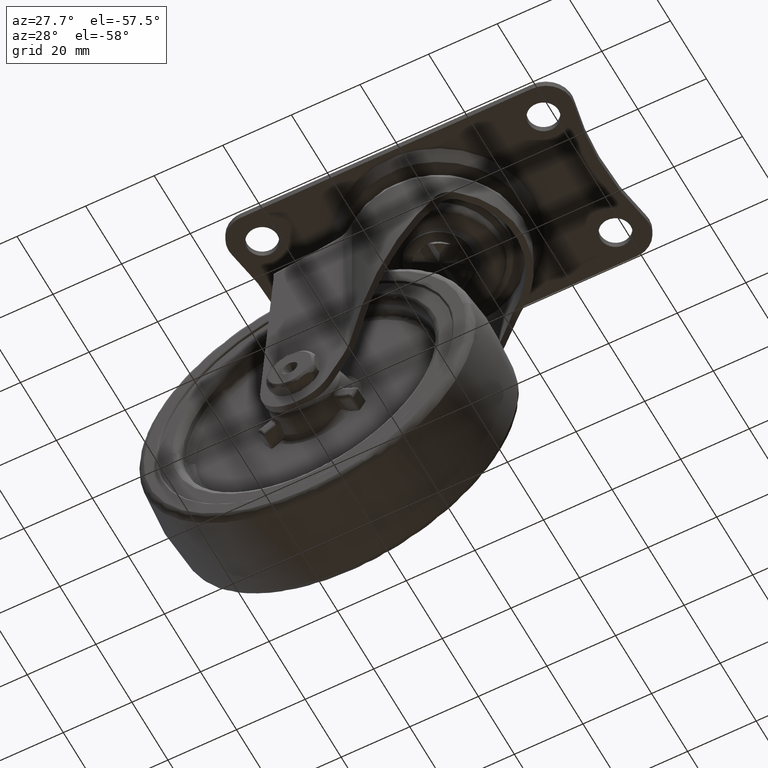
[diagram: clean part render]
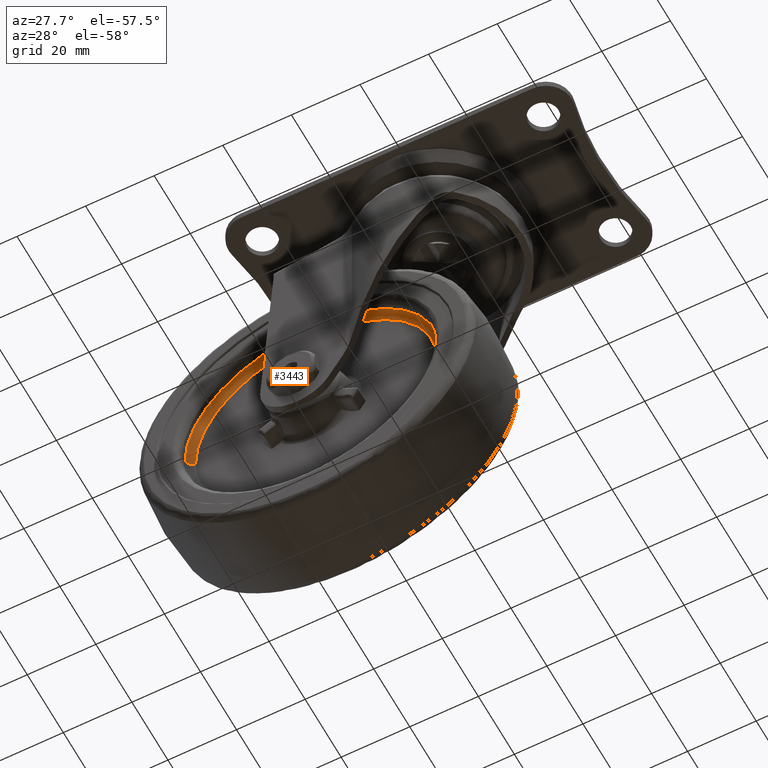
[diagram: same view with one face highlighted and labeled with its STEP entity id]
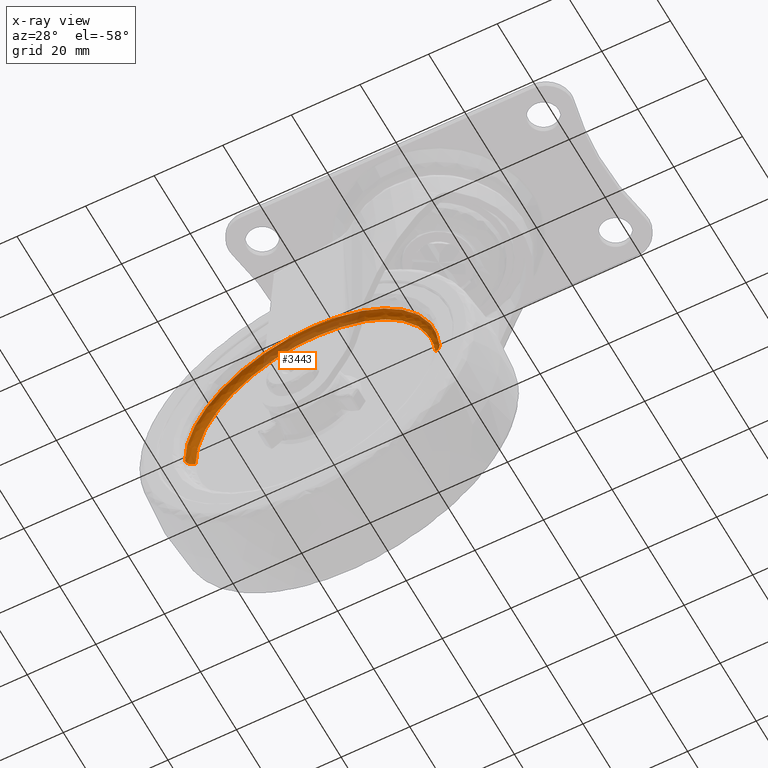
[diagram: x-ray of the same camera — body ghosted, the highlighted face saturated]
A machine part, auxiliary view. The second image highlights one B-rep face of the part: STEP entity #3443.
The next image is the same camera in x-ray: the body ghosted, the highlighted face saturated — about 27% of this face is hidden behind the body in this view.
In plain terms, the highlighted face is a freeform B-spline surface patch.
Its self-contained STEP definition (entity closure, byte-faithful):
#875=CARTESIAN_POINT('',(-68.996475683150621,-9.499999999574790,-70.464935898434035));
#876=VERTEX_POINT('',#875);
#890=CARTESIAN_POINT('',(-32.0,-9.500000000000000,-33.000603000000012));
#891=VERTEX_POINT('',#890);
#892=CARTESIAN_POINT('',(-68.996475683150621,-9.499999999574790,-70.464935898434035));
#893=CARTESIAN_POINT('',(-68.999397000000002,-9.500000000000002,-70.232477126961371));
#894=CARTESIAN_POINT('',(-68.999397000000002,-9.500000000000000,-70.0));
#895=CARTESIAN_POINT('',(-68.999397000000002,-9.500000000000000,-33.000603000000005));
#896=CARTESIAN_POINT('',(-32.0,-9.500000000000000,-33.000603000000012));
#904=(BOUNDED_CURVE()B_SPLINE_CURVE(2,(#892,#893,#894,#895,#896),.UNSPECIFIED.,.F.,.U.)B_SPLINE_CURVE_WITH_KNOTS((3,2,3),(0.747784295921043,0.750000000000000,1.0),.UNSPECIFIED.)CURVE()GEOMETRIC_REPRESENTATION_ITEM()RATIONAL_B_SPLINE_CURVE((0.994854295642436,0.997404141201505,1.0,0.707106781186548,1.0))REPRESENTATION_ITEM(''));
#905=EDGE_CURVE('',#876,#891,#904,.T.);
#907=CARTESIAN_POINT('',(4.909328399992423,-9.499999999562920,-67.419911740827203));
#908=VERTEX_POINT('',#907);
#909=CARTESIAN_POINT('',(-32.0,-9.500000000000000,-33.000603000000012));
#910=CARTESIAN_POINT('',(2.503301029085817,-9.500000000000002,-33.000603000000019));
#911=CARTESIAN_POINT('',(4.909328399992423,-9.499999999562920,-67.419911740827203));
#919=(BOUNDED_CURVE()B_SPLINE_CURVE(2,(#909,#910,#911),.UNSPECIFIED.,.F.,.U.)B_SPLINE_CURVE_WITH_KNOTS((3,3),(0.0,0.237833686534835),.UNSPECIFIED.)CURVE()GEOMETRIC_REPRESENTATION_ITEM()RATIONAL_B_SPLINE_CURVE((1.0,0.721360504034170,0.972879876386433))REPRESENTATION_ITEM(''));
#920=EDGE_CURVE('',#891,#908,#919,.T.);
#3318=CARTESIAN_POINT('',(2.914197055901172,-7.500000000000000,-67.559378243715869));
#3319=VERTEX_POINT('',#3318);
#3320=CARTESIAN_POINT('',(4.909328399992423,-9.499999999562920,-67.419911740827203));
#3321=CARTESIAN_POINT('',(4.909328399122630,-7.500000007198324,-67.419911740920284));
#3322=CARTESIAN_POINT('',(2.914197055901172,-7.500000000000000,-67.559378243715869));
#3330=(BOUNDED_CURVE()B_SPLINE_CURVE(2,(#3320,#3321,#3322),.UNSPECIFIED.,.F.,.U.)B_SPLINE_CURVE_WITH_KNOTS((3,3),(-1.725134642833592,-0.274865360409108),.UNSPECIFIED.)CURVE()GEOMETRIC_REPRESENTATION_ITEM()RATIONAL_B_SPLINE_CURVE((0.863472075216376,0.610566960583064,0.863472074085420))REPRESENTATION_ITEM(''));
#3331=EDGE_CURVE('',#908,#3319,#3330,.T.);
#3350=CARTESIAN_POINT('',(-66.996633613394039,-7.500000000000001,-70.439803819406421));
#3351=VERTEX_POINT('',#3350);
#3365=CARTESIAN_POINT('',(-68.996475683150621,-9.499999999574790,-70.464935898434035));
#3366=CARTESIAN_POINT('',(-68.996475682301181,-7.500000037317718,-70.464935898351300));
#3367=CARTESIAN_POINT('',(-66.996633613394039,-7.500000000000001,-70.439803819406421));
#3375=(BOUNDED_CURVE()B_SPLINE_CURVE(2,(#3365,#3366,#3367),.UNSPECIFIED.,.F.,.U.)B_SPLINE_CURVE_WITH_KNOTS((3,3),(-1.725134642845765,-0.274865375852756),.UNSPECIFIED.)CURVE()GEOMETRIC_REPRESENTATION_ITEM()RATIONAL_B_SPLINE_CURVE((0.883342149497479,0.624617227618937,0.883342142825927))REPRESENTATION_ITEM(''));
#3376=EDGE_CURVE('',#876,#3351,#3375,.T.);
#3384=CARTESIAN_POINT('',(-68.991634791486277,-9.639074288473537,-70.464875062720949));
#3385=CARTESIAN_POINT('',(-69.456509854207241,-9.639074288473537,-33.473240271234658));
#3386=CARTESIAN_POINT('',(-32.464875062720942,-9.639074288473537,-33.008365208513716));
#3387=CARTESIAN_POINT('',(2.468302500172372,-9.639074288473537,-32.569358843909107));
#3388=CARTESIAN_POINT('',(4.904498911322511,-9.639074288473536,-67.420249338630981));
#3389=CARTESIAN_POINT('',(-69.151537927464986,-7.344923931825184,-70.466884570567416));
#3390=CARTESIAN_POINT('',(-69.618422498032388,-7.344923931825183,-33.315346643102416));
#3391=CARTESIAN_POINT('',(-32.466884570567416,-7.344923931825184,-32.848462072535014));
#3392=CARTESIAN_POINT('',(2.617298068838312,-7.344923931825182,-32.407558022283077));
#3393=CARTESIAN_POINT('',(5.064025386454166,-7.344923931825183,-67.409097892550761));
#3394=CARTESIAN_POINT('',(-66.857568824506203,-7.504841375864288,-70.438056187160484));
#3395=CARTESIAN_POINT('',(-67.295625011666701,-7.504841375864288,-35.580487362654267));
#3396=CARTESIAN_POINT('',(-32.438056187160484,-7.504841375864288,-35.142431175493797));
#3397=CARTESIAN_POINT('',(0.479808838840017,-7.504841375864288,-34.728751308278966));
#3398=CARTESIAN_POINT('',(2.775459856978461,-7.504841375864289,-67.569076448347943));
#3406=(BOUNDED_SURFACE()B_SPLINE_SURFACE(2,2,((#3384,#3389,#3394),(#3385,#3390,#3395),(#3386,#3391,#3396),(#3387,#3392,#3397),(#3388,#3393,#3398)),.UNSPECIFIED.,.F.,.F.,.U.)B_SPLINE_SURFACE_WITH_KNOTS((3,2,3),(3,3),(0.0,61.294586862851752,120.137390251189400),(0.0,3.644749763769490),.UNSPECIFIED.)GEOMETRIC_REPRESENTATION_ITEM()RATIONAL_B_SPLINE_SURFACE(((0.910479809695891,0.597479412041801,0.910480113781935),(0.643806447569402,0.422481743874109,0.643806662590705),(0.910479809695891,0.597479412041801,0.910480113781935),(0.654473382054461,0.429481650600817,0.654473600638354),(0.889999295484577,0.584039591126522,0.889999592730448)))REPRESENTATION_ITEM('')SURFACE());
#3407=ORIENTED_EDGE('',*,*,#920,.F.);
#3408=ORIENTED_EDGE('',*,*,#905,.F.);
#3409=ORIENTED_EDGE('',*,*,#3376,.T.);
#3410=CARTESIAN_POINT('',(-32.0,-7.500000000000000,-35.000603000000012));
#3411=VERTEX_POINT('',#3410);
#3412=CARTESIAN_POINT('',(-66.996633613394039,-7.500000000000001,-70.439803819406421));
#3413=CARTESIAN_POINT('',(-66.999397000000002,-7.500000000000000,-70.219910591482261));
#3414=CARTESIAN_POINT('',(-66.999397000000002,-7.500000000000000,-70.0));
#3415=CARTESIAN_POINT('',(-66.999397000000016,-7.500000000000000,-35.000602999999998));
#3416=CARTESIAN_POINT('',(-32.0,-7.500000000000000,-35.000603000000012));
#3424=(BOUNDED_CURVE()B_SPLINE_CURVE(2,(#3412,#3413,#3414,#3415,#3416),.UNSPECIFIED.,.F.,.U.)B_SPLINE_CURVE_WITH_KNOTS((3,2,3),(0.747784295915932,0.750000000000000,1.0),.UNSPECIFIED.)CURVE()GEOMETRIC_REPRESENTATION_ITEM()RATIONAL_B_SPLINE_CURVE((0.994854295630673,0.997404141195517,1.0,0.707106781186548,1.0))REPRESENTATION_ITEM(''));
#3425=EDGE_CURVE('',#3351,#3411,#3424,.T.);
#3426=ORIENTED_EDGE('',*,*,#3425,.T.);
#3427=CARTESIAN_POINT('',(-32.0,-7.500000000000000,-35.000603000000012));
#3428=CARTESIAN_POINT('',(0.638227334531516,-7.500000000000002,-35.000603000000005));
#3429=CARTESIAN_POINT('',(2.914197055901173,-7.500000000000000,-67.559378243715869));
#3437=(BOUNDED_CURVE()B_SPLINE_CURVE(2,(#3427,#3428,#3429),.UNSPECIFIED.,.F.,.U.)B_SPLINE_CURVE_WITH_KNOTS((3,3),(0.0,0.237833686534707),.UNSPECIFIED.)CURVE()GEOMETRIC_REPRESENTATION_ITEM()RATIONAL_B_SPLINE_CURVE((1.0,0.721360504034320,0.972879876386163))REPRESENTATION_ITEM(''));
#3438=EDGE_CURVE('',#3411,#3319,#3437,.T.);
#3439=ORIENTED_EDGE('',*,*,#3438,.T.);
#3440=ORIENTED_EDGE('',*,*,#3331,.F.);
#3441=EDGE_LOOP('',(#3407,#3408,#3409,#3426,#3439,#3440));
#3442=FACE_OUTER_BOUND('',#3441,.T.);
#3443=ADVANCED_FACE('',(#3442),#3406,.F.);